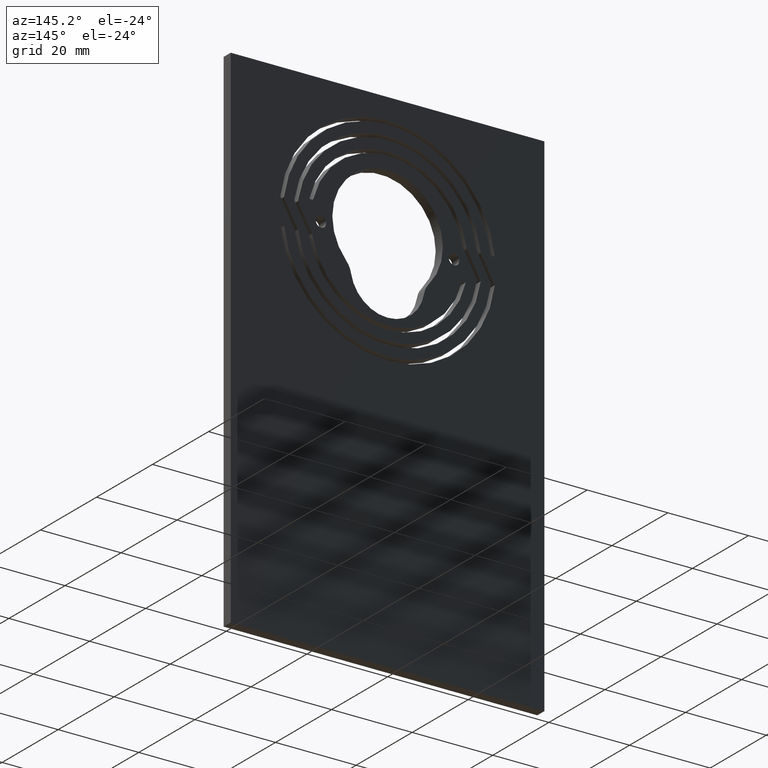
[diagram: clean part render]
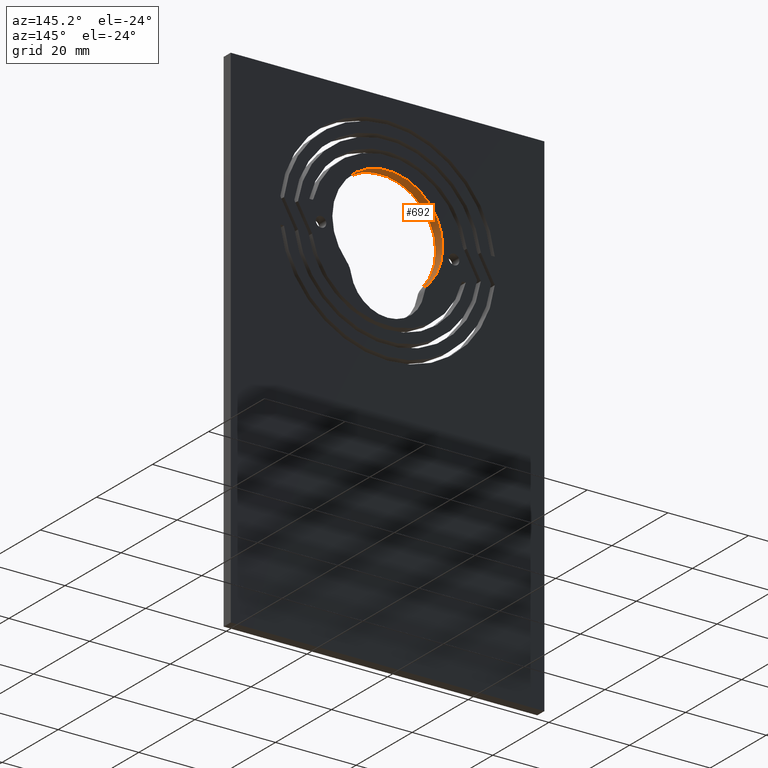
[diagram: same view with one face highlighted and labeled with its STEP entity id]
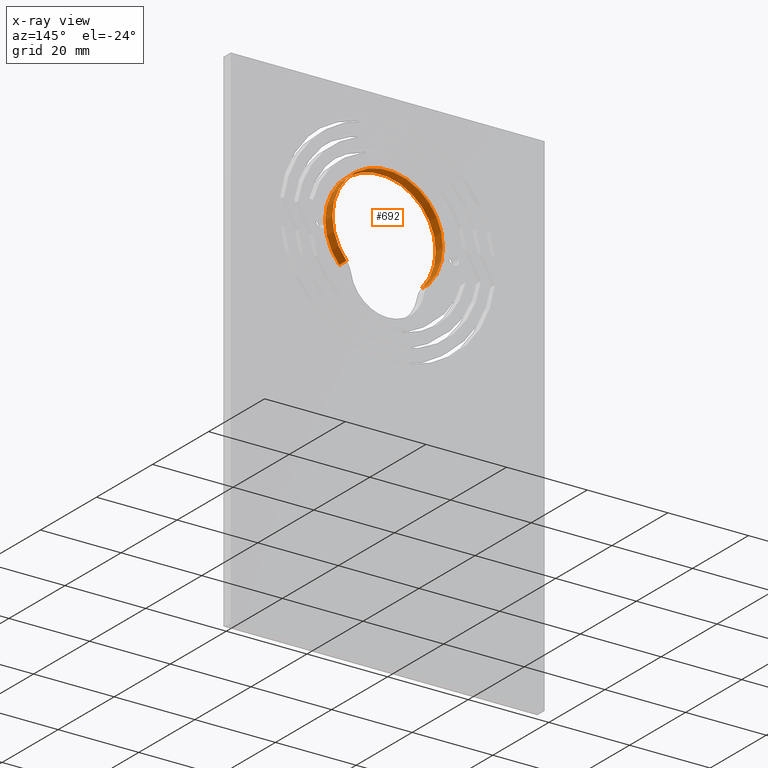
[diagram: x-ray of the same camera — body ghosted, the highlighted face saturated]
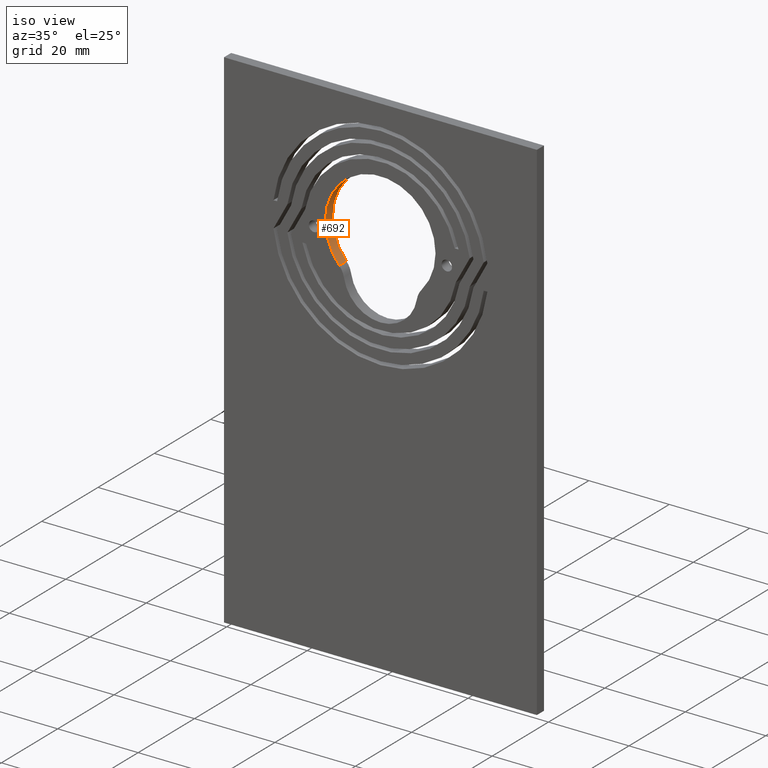
[diagram: same view with one face highlighted and labeled with its STEP entity id]
A machine part, auxiliary view. The second image highlights one B-rep face of the part: STEP entity #692.
The next image is the same camera in x-ray: the body ghosted, the highlighted face saturated — about 0% of this face is hidden behind the body in this view.
A second angle (iso view) of the same face is appended — the face is thin or edge-on in the first view.
In plain terms, the highlighted cylindrical surface (partial cylindrical patch) has radius 13.7 mm, axis along (0, -1, 0).
Its self-contained STEP definition (entity closure, byte-faithful):
#50=FACE_OUTER_BOUND('',#86,.T.);
#86=EDGE_LOOP('',(#479,#480,#481,#482));
#132=LINE('',#1051,#198);
#133=LINE('',#1057,#199);
#198=VECTOR('',#838,10.);
#199=VECTOR('',#845,10.);
#267=CIRCLE('',#750,13.7);
#268=CIRCLE('',#751,13.7);
#302=VERTEX_POINT('',#1045);
#304=VERTEX_POINT('',#1049);
#305=VERTEX_POINT('',#1053);
#306=VERTEX_POINT('',#1055);
#374=EDGE_CURVE('',#304,#302,#132,.T.);
#375=EDGE_CURVE('',#302,#305,#267,.T.);
#376=EDGE_CURVE('',#306,#304,#268,.T.);
#377=EDGE_CURVE('',#306,#305,#133,.T.);
#479=ORIENTED_EDGE('',*,*,#375,.F.);
#480=ORIENTED_EDGE('',*,*,#374,.F.);
#481=ORIENTED_EDGE('',*,*,#376,.F.);
#482=ORIENTED_EDGE('',*,*,#377,.T.);
#674=CYLINDRICAL_SURFACE('',#749,13.7);
#692=ADVANCED_FACE('',(#50),#674,.F.);
#749=AXIS2_PLACEMENT_3D('',#1052,#839,#840);
#750=AXIS2_PLACEMENT_3D('',#1054,#841,#842);
#751=AXIS2_PLACEMENT_3D('',#1056,#843,#844);
#838=DIRECTION('',(0.,-1.,0.));
#839=DIRECTION('center_axis',(0.,-1.,0.));
#840=DIRECTION('ref_axis',(1.62076353959877E-16,0.,1.));
#841=DIRECTION('center_axis',(0.,1.,0.));
#842=DIRECTION('ref_axis',(-0.746361701118838,0.,-0.66554054054054));
#843=DIRECTION('center_axis',(0.,-1.,0.));
#844=DIRECTION('ref_axis',(-0.746361701118838,0.,-0.66554054054054));
#845=DIRECTION('',(0.,-1.,0.));
#1045=CARTESIAN_POINT('',(-10.2251553053281,-2.54,-9.1179054054054));
#1049=CARTESIAN_POINT('',(-10.2251553053281,0.,-9.1179054054054));
#1051=CARTESIAN_POINT('',(-10.2251553053281,0.,-9.1179054054054));
#1052=CARTESIAN_POINT('Origin',(4.44089209850063E-15,0.,2.77555756156289E-16));
#1053=CARTESIAN_POINT('',(10.2251553053281,-2.54,-9.1179054054054));
#1054=CARTESIAN_POINT('Origin',(4.44089209850063E-15,-2.54,2.77555756156289E-16));
#1055=CARTESIAN_POINT('',(10.2251553053281,0.,-9.1179054054054));
#1056=CARTESIAN_POINT('Origin',(4.44089209850063E-15,0.,2.77555756156289E-16));
#1057=CARTESIAN_POINT('',(10.2251553053281,0.,-9.1179054054054));